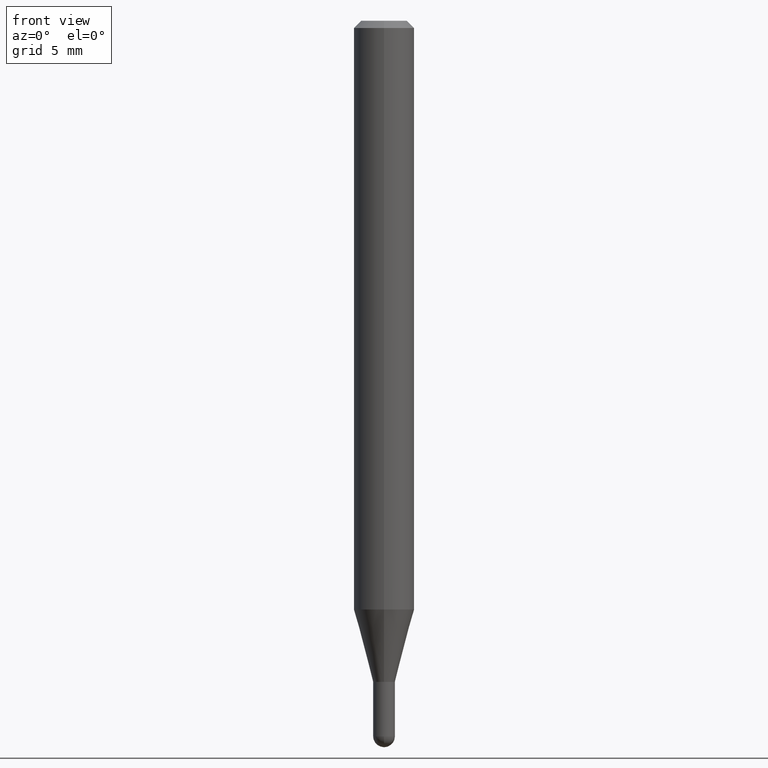
[diagram: clean part render]
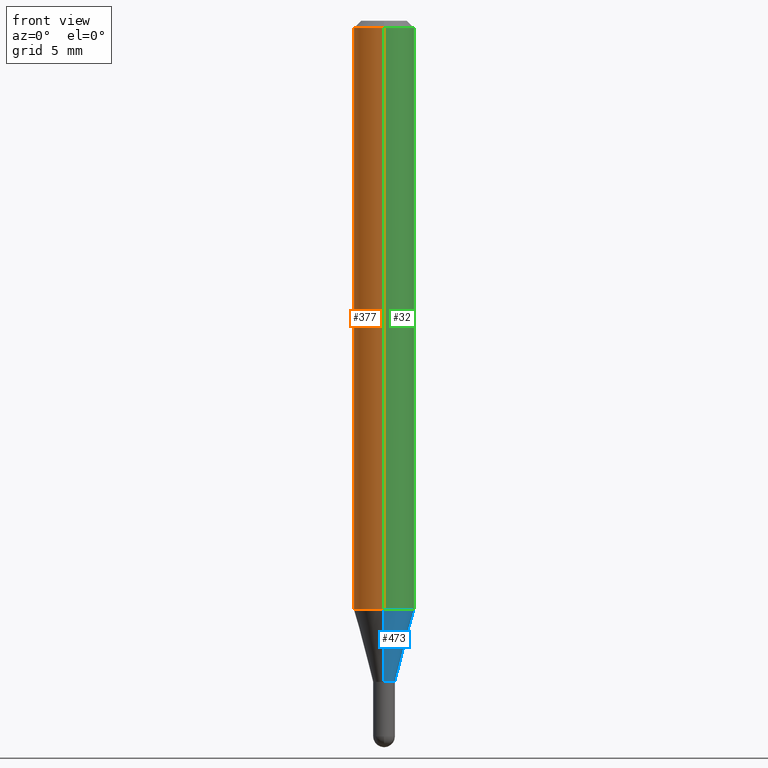
[diagram: same view with three faces highlighted in distinct colors, each labeled with its STEP entity id]
A machine part, front view with three faces highlighted in distinct colors.
Their STEP definitions:

[orange] entity #377 — the highlighted cylindrical surface (edge-blend (fillet) strip) has radius 1.5875 mm, axis along (-0, 0, 1).
#24 = EDGE_CURVE ( 'NONE', #424, #134, #509, .T. ) ;
#62 = AXIS2_PLACEMENT_3D ( 'NONE', #114, #272, #237 ) ;
#108 = EDGE_CURVE ( 'NONE', #109, #134, #213, .T. ) ;
#109 = VERTEX_POINT ( 'NONE', #253 ) ;
#114 = CARTESIAN_POINT ( 'NONE',  ( 0.000000000000000000, 0.000000000000000000, 0.000000000000000000 ) ) ;
#120 = FACE_OUTER_BOUND ( 'NONE', #284, .T. ) ;
#134 = VERTEX_POINT ( 'NONE', #150 ) ;
#142 = DIRECTION ( 'NONE',  ( -2.445464325019758025E-29, 3.491487756127019811E-15, 1.000000000000000000 ) ) ;
#150 = CARTESIAN_POINT ( 'NONE',  ( -4.364351673553912750E-16, -0.06250000000000005551, -0.01499999999999984852 ) ) ;
#163 = DIRECTION ( 'NONE',  ( -2.445464325019758025E-29, 3.491487756127019811E-15, 1.000000000000000000 ) ) ;
#180 = DIRECTION ( 'NONE',  ( -6.982962677686265922E-15, -1.000000000000000000, 3.483106191921935554E-15 ) ) ;
#185 = CIRCLE ( 'NONE', #340, 0.06250000000000000000 ) ;
#211 = ORIENTED_EDGE ( 'NONE', *, *, #292, .T. ) ;
#212 = CARTESIAN_POINT ( 'NONE',  ( 4.440892098500625669E-16, 0.06250000000000000000, -2.182179847579387382E-16 ) ) ;
#213 = CIRCLE ( 'NONE', #420, 0.06250000000000000000 ) ;
#225 = CARTESIAN_POINT ( 'NONE',  ( -4.364351673553620871E-16, -0.06250000000000427436, -1.215717967697248048 ) ) ;
#237 = DIRECTION ( 'NONE',  ( -6.982962677686265922E-15, -1.000000000000000000, 3.491487756127019811E-15 ) ) ;
#253 = CARTESIAN_POINT ( 'NONE',  ( 4.440892098500924943E-16, 0.06249999999999993755, -0.01500000000000028394 ) ) ;
#272 = DIRECTION ( 'NONE',  ( -2.445464325019758025E-29, 3.491487756127019811E-15, 1.000000000000000000 ) ) ;
#284 = EDGE_LOOP ( 'NONE', ( #413, #211, #411, #348 ) ) ;
#292 = EDGE_CURVE ( 'NONE', #392, #424, #185, .T. ) ;
#340 = AXIS2_PLACEMENT_3D ( 'NONE', #505, #469, #395 ) ;
#348 = ORIENTED_EDGE ( 'NONE', *, *, #108, .F. ) ;
#350 = VECTOR ( 'NONE', #142, 39.37007874015748143 ) ;
#360 = CARTESIAN_POINT ( 'NONE',  ( -4.364351673553916201E-16, -0.06250000000000000000, 2.182179847579387382E-16 ) ) ;
#377 = ADVANCED_FACE ( 'NONE', ( #120 ), #390, .T. ) ;
#382 = VECTOR ( 'NONE', #163, 39.37007874015748143 ) ;
#390 = CYLINDRICAL_SURFACE ( 'NONE', #62, 0.06250000000000000000 ) ;
#392 = VERTEX_POINT ( 'NONE', #508 ) ;
#395 = DIRECTION ( 'NONE',  ( -6.982962677686265922E-15, -1.000000000000000000, 4.370956789862821150E-15 ) ) ;
#411 = ORIENTED_EDGE ( 'NONE', *, *, #24, .T. ) ;
#413 = ORIENTED_EDGE ( 'NONE', *, *, #442, .F. ) ;
#420 = AXIS2_PLACEMENT_3D ( 'NONE', #493, #487, #180 ) ;
#424 = VERTEX_POINT ( 'NONE', #225 ) ;
#442 = EDGE_CURVE ( 'NONE', #392, #109, #446, .T. ) ;
#446 = LINE ( 'NONE', #212, #350 ) ;
#469 = DIRECTION ( 'NONE',  ( -2.445464325019758025E-29, 3.491487756127019811E-15, 1.000000000000000000 ) ) ;
#487 = DIRECTION ( 'NONE',  ( -2.445464325019758025E-29, 3.491487756127019811E-15, 1.000000000000000000 ) ) ;
#493 = CARTESIAN_POINT ( 'NONE',  ( 3.668196487529653118E-31, -5.237231634190552790E-17, -0.01500000000000006710 ) ) ;
#505 = CARTESIAN_POINT ( 'NONE',  ( 2.972994919289143303E-29, -4.244664399118566886E-15, -1.215717967697248492 ) ) ;
#508 = CARTESIAN_POINT ( 'NONE',  ( 4.440892098500920998E-16, 0.06249999999999573952, -1.215717967697248714 ) ) ;
#509 = LINE ( 'NONE', #360, #382 ) ;

[blue] entity #473 — the highlighted conical surface has half-angle 15 deg.
#7 = DIRECTION ( 'NONE',  ( -6.982962677686266711E-15, -1.000000000000000000, 0.000000000000000000 ) ) ;
#11 = EDGE_CURVE ( 'NONE', #424, #392, #95, .T. ) ;
#14 = FACE_OUTER_BOUND ( 'NONE', #61, .T. ) ;
#33 = VERTEX_POINT ( 'NONE', #313 ) ;
#61 = EDGE_LOOP ( 'NONE', ( #250, #117, #82, #357 ) ) ;
#68 = AXIS2_PLACEMENT_3D ( 'NONE', #444, #210, #7 ) ;
#70 = CONICAL_SURFACE ( 'NONE', #501, 0.02249999999999964528, 0.2617993877991574014 ) ;
#73 = EDGE_CURVE ( 'NONE', #33, #285, #480, .T. ) ;
#76 = DIRECTION ( 'NONE',  ( -1.807323732225378260E-15, -0.2588190451025250693, 0.9659258262890670910 ) ) ;
#82 = ORIENTED_EDGE ( 'NONE', *, *, #11, .F. ) ;
#95 = CIRCLE ( 'NONE', #302, 0.06250000000000000000 ) ;
#113 = VECTOR ( 'NONE', #76, 39.37007874015748854 ) ;
#117 = ORIENTED_EDGE ( 'NONE', *, *, #249, .T. ) ;
#179 = CARTESIAN_POINT ( 'NONE',  ( 3.338058803651969615E-29, -4.765880787113381937E-15, -1.364999999999999991 ) ) ;
#202 = CARTESIAN_POINT ( 'NONE',  ( 1.598721155460533754E-16, 0.02249999999999487826, -1.364999999999999991 ) ) ;
#209 = CARTESIAN_POINT ( 'NONE',  ( 3.019806626980729718E-16, 0.02249999999999487826, -1.364999999999999991 ) ) ;
#210 = DIRECTION ( 'NONE',  ( -2.445464325019758025E-29, 3.491487756127019811E-15, 1.000000000000000000 ) ) ;
#221 = EDGE_CURVE ( 'NONE', #33, #424, #425, .T. ) ;
#225 = CARTESIAN_POINT ( 'NONE',  ( -4.364351673553620871E-16, -0.06250000000000427436, -1.215717967697248048 ) ) ;
#248 = CARTESIAN_POINT ( 'NONE',  ( 2.972994919289143303E-29, -4.244664399118566886E-15, -1.215717967697248492 ) ) ;
#249 = EDGE_CURVE ( 'NONE', #285, #392, #386, .T. ) ;
#250 = ORIENTED_EDGE ( 'NONE', *, *, #73, .T. ) ;
#285 = VERTEX_POINT ( 'NONE', #209 ) ;
#302 = AXIS2_PLACEMENT_3D ( 'NONE', #248, #479, #438 ) ;
#312 = DIRECTION ( 'NONE',  ( 1.839019923739649225E-15, 0.2588190451025318417, 0.9659258262890653146 ) ) ;
#313 = CARTESIAN_POINT ( 'NONE',  ( -1.571166602479051226E-16, -0.02250000000000441230, -1.364999999999999991 ) ) ;
#357 = ORIENTED_EDGE ( 'NONE', *, *, #221, .F. ) ;
#364 = DIRECTION ( 'NONE',  ( -6.982962677686266711E-15, -1.000000000000000000, 0.000000000000000000 ) ) ;
#373 = CARTESIAN_POINT ( 'NONE',  ( -1.571166602479051226E-16, -0.02250000000000441230, -1.364999999999999991 ) ) ;
#386 = LINE ( 'NONE', #202, #406 ) ;
#392 = VERTEX_POINT ( 'NONE', #508 ) ;
#406 = VECTOR ( 'NONE', #312, 39.37007874015748143 ) ;
#412 = DIRECTION ( 'NONE',  ( -2.445464325019758025E-29, 3.491487756127019811E-15, 1.000000000000000000 ) ) ;
#424 = VERTEX_POINT ( 'NONE', #225 ) ;
#425 = LINE ( 'NONE', #373, #113 ) ;
#438 = DIRECTION ( 'NONE',  ( -6.982962677686265922E-15, -1.000000000000000000, 4.370956789862821150E-15 ) ) ;
#444 = CARTESIAN_POINT ( 'NONE',  ( 3.338058803651969615E-29, -4.765880787113381937E-15, -1.364999999999999991 ) ) ;
#473 = ADVANCED_FACE ( 'NONE', ( #14 ), #70, .T. ) ;
#479 = DIRECTION ( 'NONE',  ( -2.445464325019758025E-29, 3.491487756127019811E-15, 1.000000000000000000 ) ) ;
#480 = CIRCLE ( 'NONE', #68, 0.02249999999999964528 ) ;
#501 = AXIS2_PLACEMENT_3D ( 'NONE', #179, #412, #364 ) ;
#508 = CARTESIAN_POINT ( 'NONE',  ( 4.440892098500920998E-16, 0.06249999999999573952, -1.215717967697248714 ) ) ;

[green] entity #32 — the highlighted cylindrical surface (edge-blend (fillet) strip) has radius 1.5875 mm, axis along (-0, 0, 1).
#2 = DIRECTION ( 'NONE',  ( -2.445464325019758025E-29, 3.491487756127019811E-15, 1.000000000000000000 ) ) ;
#11 = EDGE_CURVE ( 'NONE', #424, #392, #95, .T. ) ;
#24 = EDGE_CURVE ( 'NONE', #424, #134, #509, .T. ) ;
#32 = ADVANCED_FACE ( 'NONE', ( #352 ), #87, .T. ) ;
#53 = ORIENTED_EDGE ( 'NONE', *, *, #442, .T. ) ;
#87 = CYLINDRICAL_SURFACE ( 'NONE', #349, 0.06250000000000000000 ) ;
#95 = CIRCLE ( 'NONE', #302, 0.06250000000000000000 ) ;
#109 = VERTEX_POINT ( 'NONE', #253 ) ;
#124 = DIRECTION ( 'NONE',  ( -6.982962677686265922E-15, -1.000000000000000000, 3.483106191921935554E-15 ) ) ;
#134 = VERTEX_POINT ( 'NONE', #150 ) ;
#137 = ORIENTED_EDGE ( 'NONE', *, *, #267, .F. ) ;
#142 = DIRECTION ( 'NONE',  ( -2.445464325019758025E-29, 3.491487756127019811E-15, 1.000000000000000000 ) ) ;
#150 = CARTESIAN_POINT ( 'NONE',  ( -4.364351673553912750E-16, -0.06250000000000005551, -0.01499999999999984852 ) ) ;
#163 = DIRECTION ( 'NONE',  ( -2.445464325019758025E-29, 3.491487756127019811E-15, 1.000000000000000000 ) ) ;
#195 = DIRECTION ( 'NONE',  ( -2.445464325019758025E-29, 3.491487756127019811E-15, 1.000000000000000000 ) ) ;
#212 = CARTESIAN_POINT ( 'NONE',  ( 4.440892098500625669E-16, 0.06250000000000000000, -2.182179847579387382E-16 ) ) ;
#214 = DIRECTION ( 'NONE',  ( -6.982962677686265922E-15, -1.000000000000000000, 3.491487756127019811E-15 ) ) ;
#224 = AXIS2_PLACEMENT_3D ( 'NONE', #430, #195, #124 ) ;
#225 = CARTESIAN_POINT ( 'NONE',  ( -4.364351673553620871E-16, -0.06250000000000427436, -1.215717967697248048 ) ) ;
#248 = CARTESIAN_POINT ( 'NONE',  ( 2.972994919289143303E-29, -4.244664399118566886E-15, -1.215717967697248492 ) ) ;
#252 = CIRCLE ( 'NONE', #224, 0.06250000000000000000 ) ;
#253 = CARTESIAN_POINT ( 'NONE',  ( 4.440892098500924943E-16, 0.06249999999999993755, -0.01500000000000028394 ) ) ;
#267 = EDGE_CURVE ( 'NONE', #134, #109, #252, .T. ) ;
#302 = AXIS2_PLACEMENT_3D ( 'NONE', #248, #479, #438 ) ;
#349 = AXIS2_PLACEMENT_3D ( 'NONE', #354, #2, #214 ) ;
#350 = VECTOR ( 'NONE', #142, 39.37007874015748143 ) ;
#352 = FACE_OUTER_BOUND ( 'NONE', #361, .T. ) ;
#354 = CARTESIAN_POINT ( 'NONE',  ( 0.000000000000000000, 0.000000000000000000, 0.000000000000000000 ) ) ;
#360 = CARTESIAN_POINT ( 'NONE',  ( -4.364351673553916201E-16, -0.06250000000000000000, 2.182179847579387382E-16 ) ) ;
#361 = EDGE_LOOP ( 'NONE', ( #506, #53, #137, #468 ) ) ;
#382 = VECTOR ( 'NONE', #163, 39.37007874015748143 ) ;
#392 = VERTEX_POINT ( 'NONE', #508 ) ;
#424 = VERTEX_POINT ( 'NONE', #225 ) ;
#430 = CARTESIAN_POINT ( 'NONE',  ( 3.668196487529653118E-31, -5.237231634190552790E-17, -0.01500000000000006710 ) ) ;
#438 = DIRECTION ( 'NONE',  ( -6.982962677686265922E-15, -1.000000000000000000, 4.370956789862821150E-15 ) ) ;
#442 = EDGE_CURVE ( 'NONE', #392, #109, #446, .T. ) ;
#446 = LINE ( 'NONE', #212, #350 ) ;
#468 = ORIENTED_EDGE ( 'NONE', *, *, #24, .F. ) ;
#479 = DIRECTION ( 'NONE',  ( -2.445464325019758025E-29, 3.491487756127019811E-15, 1.000000000000000000 ) ) ;
#506 = ORIENTED_EDGE ( 'NONE', *, *, #11, .T. ) ;
#508 = CARTESIAN_POINT ( 'NONE',  ( 4.440892098500920998E-16, 0.06249999999999573952, -1.215717967697248714 ) ) ;
#509 = LINE ( 'NONE', #360, #382 ) ;